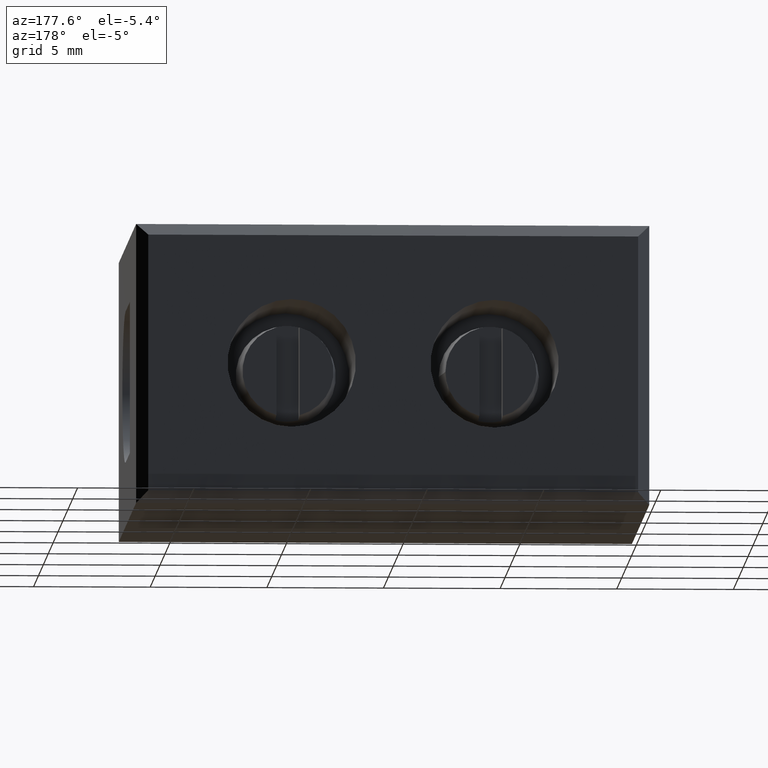
[diagram: clean part render]
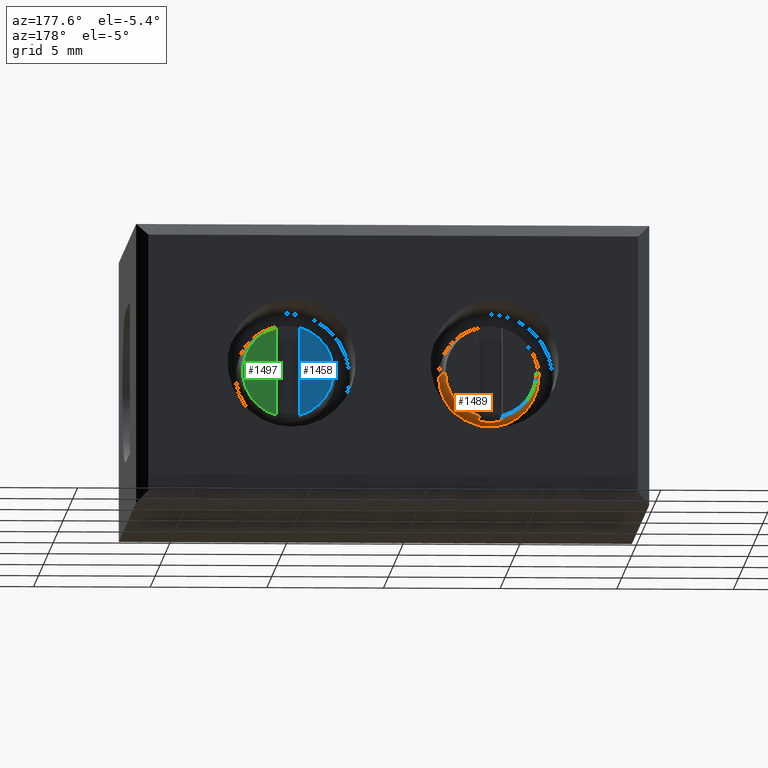
[diagram: same view with three faces highlighted in distinct colors, each labeled with its STEP entity id]
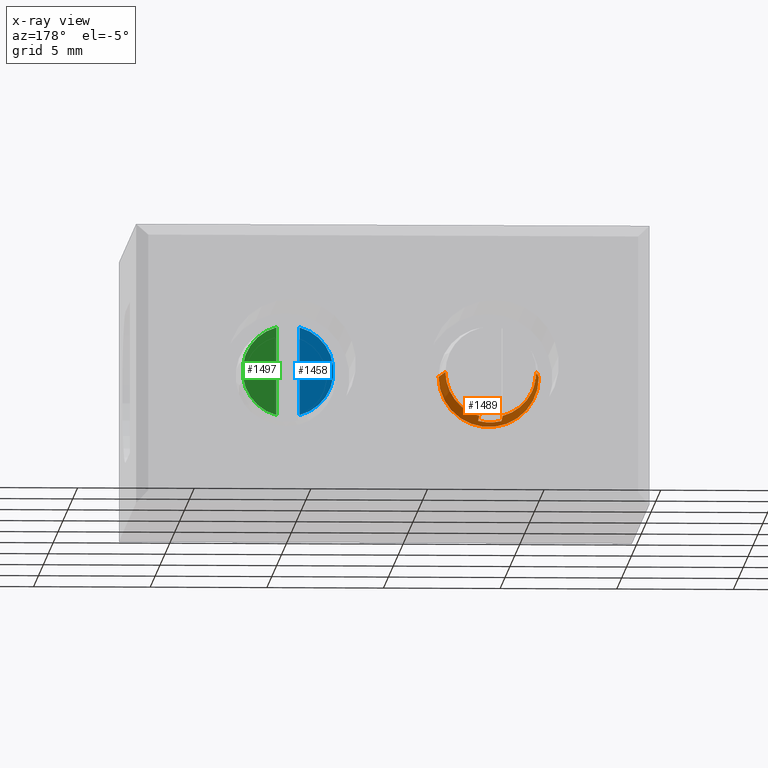
[diagram: x-ray of the same camera — body ghosted, the three highlighted faces saturated]
A machine part, auxiliary view with three faces highlighted in distinct colors.
The next image is the same camera in x-ray (body ghosted, the three faces saturated) — at least one of them is partly hidden behind the body in this view.
Their STEP definitions:

[orange] entity #1489 — the highlighted conical surface has half-angle 4.97 deg.
#179 = EDGE_LOOP ( 'NONE', ( #619, #551, #559, #595, #564, #534, #560, #525 ) ) ;
#184 = CARTESIAN_POINT ( 'NONE',  ( 6.150000000000004800, 13.80275479106675000, -7.992572455551025400 ) ) ;
#233 = VERTEX_POINT ( 'NONE', #184 ) ;
#248 = VERTEX_POINT ( 'NONE', #852 ) ;
#257 = VERTEX_POINT ( 'NONE', #825 ) ;
#275 = VERTEX_POINT ( 'NONE', #868 ) ;
#277 = VERTEX_POINT ( 'NONE', #866 ) ;
#282 = VERTEX_POINT ( 'NONE', #819 ) ;
#283 = VERTEX_POINT ( 'NONE', #869 ) ;
#285 = VERTEX_POINT ( 'NONE', #845 ) ;
#525 = ORIENTED_EDGE ( 'NONE', *, *, #1321, .T. ) ;
#534 = ORIENTED_EDGE ( 'NONE', *, *, #1329, .T. ) ;
#551 = ORIENTED_EDGE ( 'NONE', *, *, #1345, .T. ) ;
#559 = ORIENTED_EDGE ( 'NONE', *, *, #1388, .T. ) ;
#560 = ORIENTED_EDGE ( 'NONE', *, *, #1309, .T. ) ;
#564 = ORIENTED_EDGE ( 'NONE', *, *, #1398, .T. ) ;
#595 = ORIENTED_EDGE ( 'NONE', *, *, #1318, .T. ) ;
#619 = ORIENTED_EDGE ( 'NONE', *, *, #1303, .F. ) ;
#819 = CARTESIAN_POINT ( 'NONE',  ( 7.150000000000005700, 15.00275479105415100, -7.884807682518951900 ) ) ;
#825 = CARTESIAN_POINT ( 'NONE',  ( 7.150000000000005700, 13.80275479106699700, -7.992572455551004900 ) ) ;
#845 = CARTESIAN_POINT ( 'NONE',  ( 6.150000000000004800, 15.00275479105415100, -7.884807682518948400 ) ) ;
#852 = CARTESIAN_POINT ( 'NONE',  ( 8.600000000021045900, 15.00275479105539100, -5.999999999999998200 ) ) ;
#866 = CARTESIAN_POINT ( 'NONE',  ( 4.699999999978970800, 15.00275479105539500, -5.999999999999998200 ) ) ;
#868 = CARTESIAN_POINT ( 'NONE',  ( 8.800000000015636200, 12.70275479106430800, -5.999999999999998200 ) ) ;
#869 = CARTESIAN_POINT ( 'NONE',  ( 4.499999999984372500, 12.70275479106431900, -5.999999999999998200 ) ) ;
#982 = CONICAL_SURFACE ( 'NONE', #1010, 2.150000000000803300, 0.08673833867398733600 ) ;
#1010 = AXIS2_PLACEMENT_3D ( 'NONE', #2406, #2396, #2397 ) ;
#1147 = VECTOR ( 'NONE', #1773, 1000.000000000000100 ) ;
#1152 = AXIS2_PLACEMENT_3D ( 'NONE', #1812, #1834, #1804 ) ;
#1153 = AXIS2_PLACEMENT_3D ( 'NONE', #1818, #1826, #1839 ) ;
#1158 = VECTOR ( 'NONE', #1800, 1000.000000000000000 ) ;
#1163 = AXIS2_PLACEMENT_3D ( 'NONE', #1838, #1828, #1825 ) ;
#1168 = CIRCLE ( 'NONE', #1152, 2.150000000015631400 ) ;
#1176 = CIRCLE ( 'NONE', #1163, 2.054347826104099700 ) ;
#1183 = CIRCLE ( 'NONE', #1222, 1.950000000021037300 ) ;
#1191 = CIRCLE ( 'NONE', #1153, 1.950000000021037300 ) ;
#1222 = AXIS2_PLACEMENT_3D ( 'NONE', #1918, #1917, #1899 ) ;
#1263 = B_SPLINE_CURVE_WITH_KNOTS ( 'NONE', 3,
 ( #2054, #2045, #2042, #2028 ),
 .UNSPECIFIED., .F., .F.,
 ( 4, 4 ),
 ( 5.423722181687591300E-015, 0.001204829135723770700 ),
 .UNSPECIFIED. ) ;
#1266 = B_SPLINE_CURVE_WITH_KNOTS ( 'NONE', 3,
 ( #2000, #2004, #2019, #2035 ),
 .UNSPECIFIED., .F., .F.,
 ( 4, 4 ),
 ( 1.247014027726578600E-015, 0.001204829135717347700 ),
 .UNSPECIFIED. ) ;
#1303 = EDGE_CURVE ( 'NONE', #277, #283, #1740, .T. ) ;
#1309 = EDGE_CURVE ( 'NONE', #248, #275, #1801, .T. ) ;
#1318 = EDGE_CURVE ( 'NONE', #233, #257, #1176, .T. ) ;
#1321 = EDGE_CURVE ( 'NONE', #275, #283, #1168, .T. ) ;
#1329 = EDGE_CURVE ( 'NONE', #282, #248, #1191, .T. ) ;
#1345 = EDGE_CURVE ( 'NONE', #277, #285, #1183, .T. ) ;
#1388 = EDGE_CURVE ( 'NONE', #285, #233, #1266, .T. ) ;
#1398 = EDGE_CURVE ( 'NONE', #257, #282, #1263, .T. ) ;
#1489 = ADVANCED_FACE ( 'NONE', ( #2361 ), #982, .T. ) ;
#1733 = CARTESIAN_POINT ( 'NONE',  ( 4.499999999999200600, 12.70275479123484500, -5.999999999999998200 ) ) ;
#1740 = LINE ( 'NONE', #1733, #1158 ) ;
#1773 = DIRECTION ( 'NONE',  ( 0.08662961636284970100, -0.9962405881958561500, -4.019074269915459900E-016 ) ) ;
#1777 = CARTESIAN_POINT ( 'NONE',  ( 8.800000000000807200, 12.70275479123483800, -5.999999999999998200 ) ) ;
#1800 = DIRECTION ( 'NONE',  ( -0.08662961636285374000, -0.9962405881958558100, -3.912983587525331000E-016 ) ) ;
#1801 = LINE ( 'NONE', #1777, #1147 ) ;
#1804 = DIRECTION ( 'NONE',  ( 1.000000000000000000, -2.420544385066318400E-015, 0.0000000000000000000 ) ) ;
#1812 = CARTESIAN_POINT ( 'NONE',  ( 6.650000000000003900, 12.70275479106431300, -5.999999999999998200 ) ) ;
#1818 = CARTESIAN_POINT ( 'NONE',  ( 6.650000000000008300, 15.00275479105539500, -5.999999999999997300 ) ) ;
#1825 = DIRECTION ( 'NONE',  ( 1.000000000000000000, -1.688831320513592300E-015, 0.0000000000000000000 ) ) ;
#1826 = DIRECTION ( 'NONE',  ( -2.017120320902510400E-015, -1.000000000000000000, -4.034240641805019700E-016 ) ) ;
#1828 = DIRECTION ( 'NONE',  ( -2.017120320902510400E-015, -1.000000000000000000, -4.034240641805019700E-016 ) ) ;
#1834 = DIRECTION ( 'NONE',  ( 2.017120320902510400E-015, 1.000000000000000000, 4.034240641805019700E-016 ) ) ;
#1838 = CARTESIAN_POINT ( 'NONE',  ( 6.650000000000006600, 13.80275479107240100, -5.999999999999997300 ) ) ;
#1839 = DIRECTION ( 'NONE',  ( 1.000000000000000000, -1.779203565085223000E-015, 0.0000000000000000000 ) ) ;
#1899 = DIRECTION ( 'NONE',  ( 1.000000000000000000, -1.779203565085223000E-015, 0.0000000000000000000 ) ) ;
#1917 = DIRECTION ( 'NONE',  ( -2.017120320902510400E-015, -1.000000000000000000, -4.034240641805019700E-016 ) ) ;
#1918 = CARTESIAN_POINT ( 'NONE',  ( 6.650000000000008300, 15.00275479105539100, -5.999999999999997300 ) ) ;
#2000 = CARTESIAN_POINT ( 'NONE',  ( 6.150000000000004800, 15.00275479105415100, -7.884807682518948400 ) ) ;
#2004 = CARTESIAN_POINT ( 'NONE',  ( 6.150000000000004800, 14.60276050546707100, -7.920792848867260500 ) ) ;
#2019 = CARTESIAN_POINT ( 'NONE',  ( 6.150000000000004800, 14.20276018726611200, -7.956711004023490300 ) ) ;
#2028 = CARTESIAN_POINT ( 'NONE',  ( 7.150000000000005700, 15.00275479105415100, -7.884807682518951900 ) ) ;
#2035 = CARTESIAN_POINT ( 'NONE',  ( 6.150000000000004800, 13.80275479106675000, -7.992572455551025400 ) ) ;
#2042 = CARTESIAN_POINT ( 'NONE',  ( 7.150000000000005700, 14.60276050546707300, -7.920792848867260500 ) ) ;
#2045 = CARTESIAN_POINT ( 'NONE',  ( 7.150000000000005700, 14.20276018726611700, -7.956711004023490300 ) ) ;
#2054 = CARTESIAN_POINT ( 'NONE',  ( 7.150000000000005700, 13.80275479106699700, -7.992572455551004900 ) ) ;
#2361 = FACE_OUTER_BOUND ( 'NONE', #179, .T. ) ;
#2396 = DIRECTION ( 'NONE',  ( -2.017120320902510400E-015, -1.000000000000000000, -4.034240641805019700E-016 ) ) ;
#2397 = DIRECTION ( 'NONE',  ( 1.000000000000000000, -1.613696256722008300E-015, 0.0000000000000000000 ) ) ;
#2406 = CARTESIAN_POINT ( 'NONE',  ( 6.650000000000003900, 12.70275479123484200, -5.999999999999998200 ) ) ;

[blue] entity #1458 — the highlighted planar face has unit normal (0, 1, 0).
#173 = EDGE_LOOP ( 'NONE', ( #563, #584 ) ) ;
#258 = VERTEX_POINT ( 'NONE', #822 ) ;
#260 = VERTEX_POINT ( 'NONE', #853 ) ;
#563 = ORIENTED_EDGE ( 'NONE', *, *, #1366, .F. ) ;
#584 = ORIENTED_EDGE ( 'NONE', *, *, #1362, .T. ) ;
#822 = CARTESIAN_POINT ( 'NONE',  ( 14.84999999999999800, 15.00275479105405900, -4.115192317483631800 ) ) ;
#853 = CARTESIAN_POINT ( 'NONE',  ( 14.84999999999999800, 15.00275479105405900, -7.884807682516363800 ) ) ;
#997 = AXIS2_PLACEMENT_3D ( 'NONE', #2228, #2256, #2245 ) ;
#1224 = VECTOR ( 'NONE', #1968, 1000.000000000000000 ) ;
#1255 = CIRCLE ( 'NONE', #1256, 1.950000000018529800 ) ;
#1256 = AXIS2_PLACEMENT_3D ( 'NONE', #1953, #1933, #1931 ) ;
#1362 = EDGE_CURVE ( 'NONE', #258, #260, #1974, .T. ) ;
#1366 = EDGE_CURVE ( 'NONE', #258, #260, #1255, .T. ) ;
#1458 = ADVANCED_FACE ( 'NONE', ( #2238 ), #2248, .T. ) ;
#1931 = DIRECTION ( 'NONE',  ( 0.0000000000000000000, 0.0000000000000000000, -1.000000000000000000 ) ) ;
#1933 = DIRECTION ( 'NONE',  ( -0.0000000000000000000, -1.000000000000000000, -4.034240641809732600E-016 ) ) ;
#1941 = CARTESIAN_POINT ( 'NONE',  ( 14.84999999999999800, 15.00275479104980300, -5.999999999999998200 ) ) ;
#1953 = CARTESIAN_POINT ( 'NONE',  ( 15.35000000000000300, 15.00275479105539500, -5.999999999999997300 ) ) ;
#1968 = DIRECTION ( 'NONE',  ( -0.0000000000000000000, 0.0000000000000000000, -1.000000000000000000 ) ) ;
#1974 = LINE ( 'NONE', #1941, #1224 ) ;
#2228 = CARTESIAN_POINT ( 'NONE',  ( 15.35000000000000300, 15.00275479104980300, -5.999999999999998200 ) ) ;
#2238 = FACE_OUTER_BOUND ( 'NONE', #173, .T. ) ;
#2245 = DIRECTION ( 'NONE',  ( 0.0000000000000000000, -0.0000000000000000000, 1.000000000000000000 ) ) ;
#2248 = PLANE ( 'NONE',  #997 ) ;
#2256 = DIRECTION ( 'NONE',  ( 0.0000000000000000000, 1.000000000000000000, 0.0000000000000000000 ) ) ;

[green] entity #1497 — the highlighted planar face has unit normal (0, 1, 0).
#109 = CARTESIAN_POINT ( 'NONE',  ( 15.35000000000000300, 15.00275479105539500, -5.999999999999997300 ) ) ;
#112 = DIRECTION ( 'NONE',  ( 0.0000000000000000000, 0.0000000000000000000, -1.000000000000000000 ) ) ;
#125 = DIRECTION ( 'NONE',  ( -0.0000000000000000000, -1.000000000000000000, -4.034240641809732600E-016 ) ) ;
#152 = EDGE_LOOP ( 'NONE', ( #549, #585 ) ) ;
#252 = VERTEX_POINT ( 'NONE', #821 ) ;
#293 = VERTEX_POINT ( 'NONE', #855 ) ;
#549 = ORIENTED_EDGE ( 'NONE', *, *, #1355, .T. ) ;
#585 = ORIENTED_EDGE ( 'NONE', *, *, #1282, .F. ) ;
#821 = CARTESIAN_POINT ( 'NONE',  ( 15.85000000000000000, 15.00275479105405900, -7.884807682516367300 ) ) ;
#855 = CARTESIAN_POINT ( 'NONE',  ( 15.85000000000000000, 15.00275479105405900, -4.115192317483630000 ) ) ;
#1056 = AXIS2_PLACEMENT_3D ( 'NONE', #2372, #2380, #2393 ) ;
#1123 = CIRCLE ( 'NONE', #1124, 1.950000000018529800 ) ;
#1124 = AXIS2_PLACEMENT_3D ( 'NONE', #109, #125, #112 ) ;
#1218 = VECTOR ( 'NONE', #1890, 1000.000000000000000 ) ;
#1282 = EDGE_CURVE ( 'NONE', #252, #293, #1123, .T. ) ;
#1355 = EDGE_CURVE ( 'NONE', #252, #293, #1916, .T. ) ;
#1497 = ADVANCED_FACE ( 'NONE', ( #2391 ), #2390, .T. ) ;
#1890 = DIRECTION ( 'NONE',  ( 0.0000000000000000000, -0.0000000000000000000, 1.000000000000000000 ) ) ;
#1895 = CARTESIAN_POINT ( 'NONE',  ( 15.85000000000000000, 15.00275479104980300, -5.999999999999998200 ) ) ;
#1916 = LINE ( 'NONE', #1895, #1218 ) ;
#2372 = CARTESIAN_POINT ( 'NONE',  ( 15.35000000000000300, 15.00275479104980300, -5.999999999999998200 ) ) ;
#2380 = DIRECTION ( 'NONE',  ( 0.0000000000000000000, 1.000000000000000000, 0.0000000000000000000 ) ) ;
#2390 = PLANE ( 'NONE',  #1056 ) ;
#2391 = FACE_OUTER_BOUND ( 'NONE', #152, .T. ) ;
#2393 = DIRECTION ( 'NONE',  ( 0.0000000000000000000, -0.0000000000000000000, 1.000000000000000000 ) ) ;